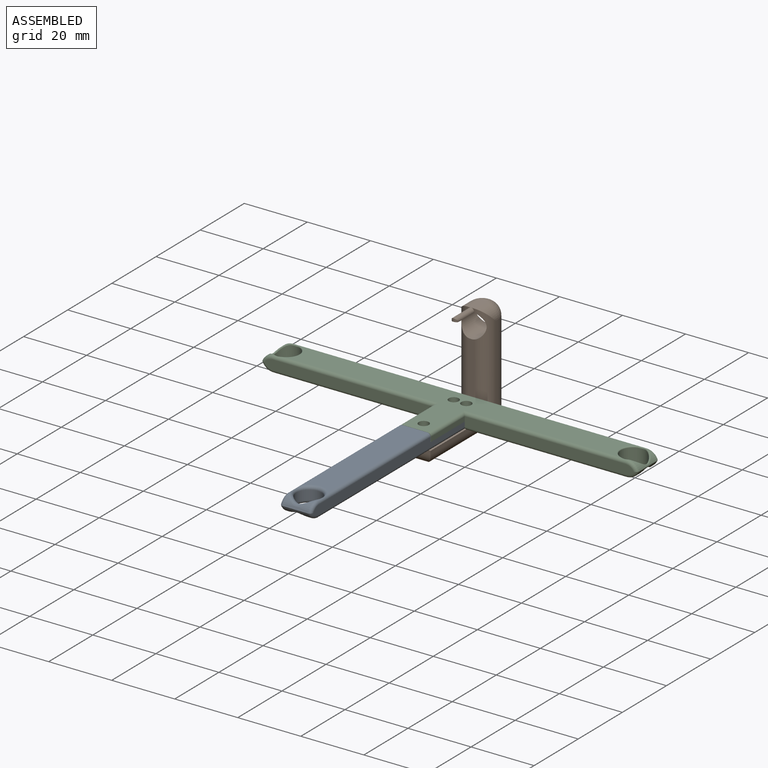
[diagram: assembled view]
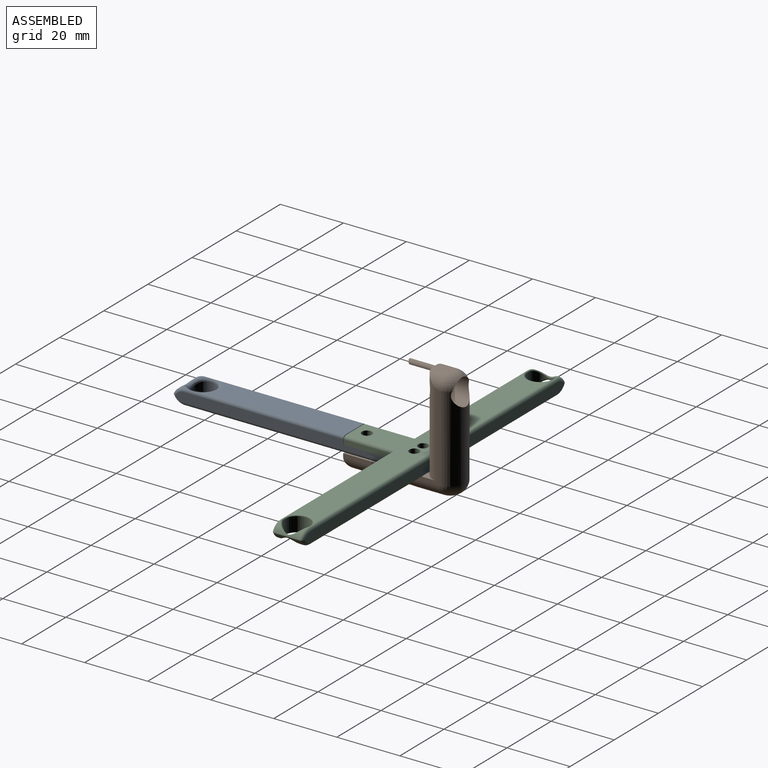
[diagram: assembled view, second angle]
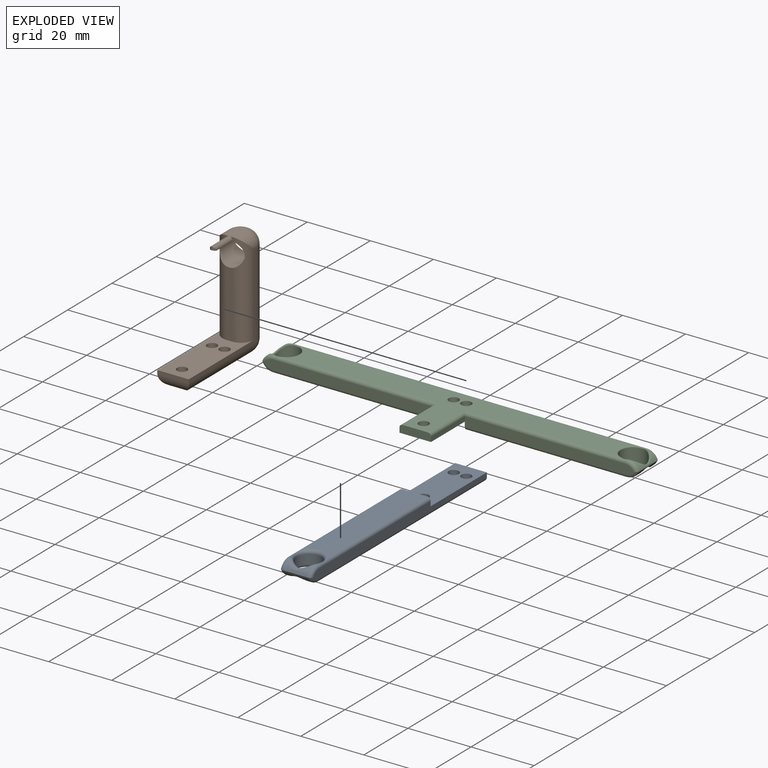
[diagram: exploded view]
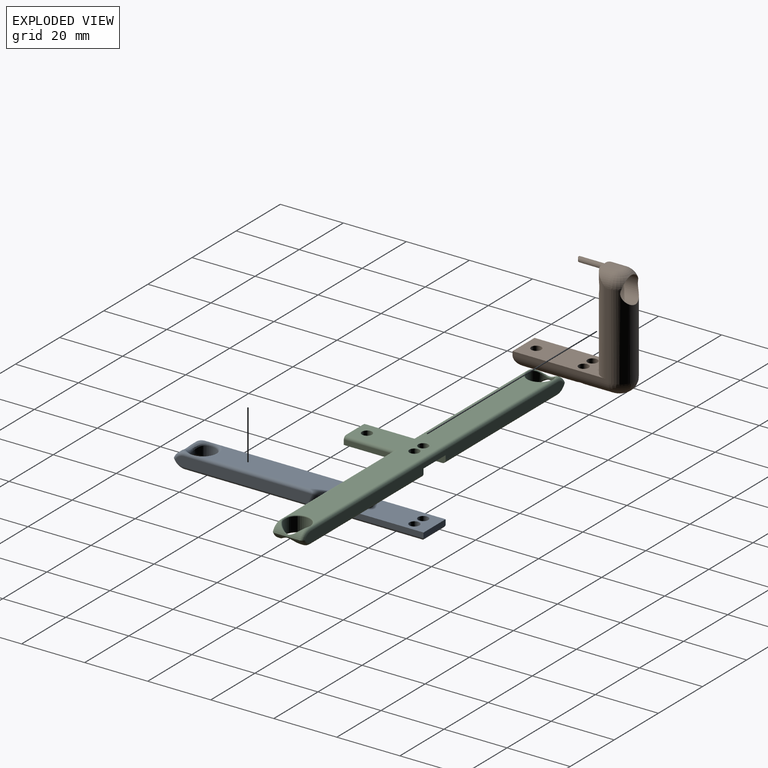
[diagram: exploded view, second angle]
ASSEMBLY  parts=3 mates=2
PART A: 26 faces, bbox 12.4x80x6.8 mm
  f0: plane 78.6x3mm, normal (-1,0,0), area 195.4mm2, adj f1,f5,f6,f13,f16,f20,f21
  f1: plane 10x1.5mm, normal (0,-1,0), area 15mm2, adj f0,f2,f6,f15
  f2: plane 78.6x3mm, normal (1,0,0), area 195.4mm2, adj f1,f5,f6,f18,f22,f23,f25
  f3: plane 45.03x8mm, normal (0,0,1), area 349.1mm2, adj f5,f19,f20,f23
  f4: plane 69.47x8mm, normal (0,0,-1), area 520.4mm2, adj f7,f8,f9,f13,f14,f15,f18
  f5: plane 10x2.5mm, normal (0,-1,0), area 24.6mm2, adj f0,f2,f3,f6,f20,f23
  f6: plane 25.44x10mm, normal (0,0,1), area 230.3mm2, adj f0,f1,f2,f5,f7,f8,f9
  f7: cylinder r=1.6mm len=3.2mm, axis (0,0,1), area 25.1mm2, adj f4,f6
  f8: cylinder r=1.6mm len=3.2mm, axis (0,0,1), area 25.1mm2, adj f4,f6
  f9: cylinder r=1.6mm len=3.2mm, axis (0,0,1), area 25.1mm2, adj f4,f6
  f10: cylinder r=4mm len=8mm, axis (0,0,1), area 75.4mm2, adj f14,f17,f19,f24
  f11: cylinder r=4mm len=8mm, axis (1,0,0), area 15.8mm2, adj f12,f21,f24,f25
  f12: cylinder r=4mm len=8mm, axis (-1,0,0), area 15.8mm2, adj f11,f16,f17,f22
  f13: cylinder r=1mm len=76mm, axis (0,-1,0), area 116.8mm2, adj f0,f4,f14,f15,f16,f17
  f14: torus R=5mm, axis (0,0,1), area 24.6mm2, adj f4,f10,f13,f17,f18
  f15: cylinder r=1mm len=10mm, axis (1,0,0), area 14.1mm2, adj f1,f4,f13,f18
  f16: torus R=3mm, axis (-1,0,0), area 6.4mm2, adj f0,f12,f13,f17,f21
  f17: bspline ~9.2x4.42mm, area 20.5mm2, adj f10,f12,f13,f14,f16,f18,f22
  f18: cylinder r=1mm len=76mm, axis (0,1,0), area 116.8mm2, adj f2,f4,f14,f15,f17,f22
  f19: torus R=5mm, axis (0,0,1), area 24.6mm2, adj f3,f10,f20,f23,f24
  f20: cylinder r=1mm len=50.56mm, axis (0,1,0), area 77.4mm2, adj f0,f3,f5,f19,f21,f24
  f21: torus R=3mm, axis (-1,0,0), area 6.4mm2, adj f0,f11,f16,f20,f24
  f22: torus R=3mm, axis (1,0,0), area 6.4mm2, adj f2,f12,f17,f18,f25
  f23: cylinder r=1mm len=50.56mm, axis (0,-1,0), area 77.4mm2, adj f2,f3,f5,f19,f24,f25
  f24: bspline ~9.2x4.42mm, area 20.5mm2, adj f10,f11,f19,f20,f21,f23,f25
  f25: torus R=3mm, axis (1,0,0), area 6.4mm2, adj f2,f11,f22,f23,f24
PART B: 25 faces, bbox 35.5x10x35 mm
  f0: plane 30.5x27mm, normal (0,-1,0), area 56.5mm2, adj f1,f4,f11,f12,f13,f17
  f1: plane 10x1mm, normal (1,0,0), area 10mm2, adj f0,f2,f4,f19
  f2: plane 30.5x27mm, normal (0,1,0), area 56.5mm2, adj f1,f4,f11,f15,f16,f20
  f3: plane 26.19x2mm, normal (0,0,1), area 49.4mm2, adj f5,f6,f7,f17,f18,f20
  f4: plane 29.5x10mm, normal (0,0,-1), area 237.7mm2, adj f0,f1,f2,f5,f6,f7,f8,f12
  f5: cylinder r=1.6mm len=5mm, axis (0,0,1), area 47.2mm2, adj f3,f4,f20
  f6: cylinder r=1.6mm len=5mm, axis (0,0,1), area 47.2mm2, adj f3,f4,f17
  f7: cylinder r=1.6mm len=5mm, axis (0,0,1), area 49.6mm2, adj f3,f4,f17,f19,f20
  f8: plane 21.13x2mm, normal (1,0,0), area 42.1mm2, adj f4,f10,f12,f15
  f9: plane 6x2mm, normal (0,0,-1), area 11.5mm2, adj f12,f13,f14,f15,f16
  f10: cylinder r=4mm len=18mm, axis (1,0,0), area 222.1mm2, adj f8,f11,f12,f14,f15,f21,f22,f23
  f11: cylinder r=5mm len=27mm, axis (0,0,1), area 387.1mm2, adj f0,f2,f10,f14,f18
  f12: cylinder r=4mm len=30mm, axis (0,0,-1), area 160.8mm2, adj f0,f4,f8,f9,f10,f13,f21,f24
  f13: cylinder r=4mm len=5mm, axis (-1,0,0), area 22.3mm2, adj f0,f9,f12,f14
  f14: torus R=1mm, axis (0,0,-1), area 49.5mm2, adj f9,f10,f11,f13,f16
  f15: cylinder r=4mm len=30mm, axis (0,0,1), area 160.8mm2, adj f2,f4,f8,f9,f10,f16,f22,f24
  f16: cylinder r=4mm len=5mm, axis (1,0,0), area 22.3mm2, adj f2,f9,f14,f15
  f17: cylinder r=4mm len=30.5mm, axis (-1,0,0), area 174.3mm2, adj f0,f3,f6,f7,f18,f19
  f18: torus R=1mm, axis (0,0,1), area 70mm2, adj f3,f11,f17,f20
  f19: cylinder r=4mm len=10mm, axis (0,-1,0), area 41mm2, adj f1,f7,f17,f20
  f20: cylinder r=4mm len=30.5mm, axis (1,0,0), area 174.3mm2, adj f2,f3,f5,f7,f18,f19
  f21: plane 7x0.13mm, normal (0,-1,0), area 0.9mm2, adj f10,f12,f23,f24
  f22: plane 7x0.13mm, normal (0,1,0), area 0.9mm2, adj f10,f15,f23,f24
  f23: cylinder r=1mm len=2mm, axis (0,0,-1), area 2.2mm2, adj f10,f21,f22,f24
  f24: cylinder r=1mm len=8.13mm, axis (1,0,0), area 24.2mm2, adj f12,f15,f21,f22,f23
PART C: 62 faces, bbox 120x25.3x5.7 mm
  f0: plane 48.42x8mm, normal (0,0,1), area 371.6mm2, adj f10,f26,f33,f56
  f1: plane 106.84x24.3mm, normal (0,0,-1), area 929.5mm2, adj f5,f6,f11,f14,f21,f22,f31,f34
  f2: plane 48.42x8mm, normal (0,0,1), area 371.6mm2, adj f9,f24,f28,f38
  f3: plane 53.6x3mm, normal (0,1,0), area 158.5mm2, adj f9,f12,f22,f23,f24,f25
  f4: plane 53.6x3mm, normal (0,1,0), area 158.5mm2, adj f10,f13,f33,f35,f36,f37
  f5: cylinder r=1.6mm len=3.2mm, axis (0,0,-1), area 25.1mm2, adj f1,f8
  f6: cylinder r=1.6mm len=3.2mm, axis (0,0,-1), area 25.1mm2, adj f1,f8
  f7: plane 117.2x3mm, normal (0,-1,0), area 332.1mm2, adj f8,f9,f10,f26,f27,f28,f29,f30
  f8: plane 25.3x10mm, normal (0,0,1), area 228.9mm2, adj f5,f6,f7,f9,f10,f11,f12,f13
  f9: plane 10x2.5mm, normal (1,0,0), area 24.6mm2, adj f2,f3,f7,f8,f24,f28
  f10: plane 10x2.5mm, normal (-1,0,0), area 24.6mm2, adj f0,f4,f7,f8,f26,f33
  f11: plane 10x2.5mm, normal (0,1,0), area 24.6mm2, adj f1,f8,f12,f13,f21,f34
  f12: plane 15.3x1.5mm, normal (-1,0,0), area 22.9mm2, adj f3,f8,f11,f21
  f13: plane 15.3x1.5mm, normal (1,0,0), area 22.9mm2, adj f4,f8,f11,f34
  f14: cylinder r=1.6mm len=3.2mm, axis (0,0,-1), area 25.1mm2, adj f1,f8
  f15: cylinder r=4mm len=8mm, axis (0,0,1), area 90.4mm2, adj f50,f51,f52,f53,f54,f55,f56,f57
  f16: cylinder r=4mm len=8mm, axis (0,0,1), area 90.4mm2, adj f38,f39,f40,f41,f42,f43,f44,f45
  f17: cylinder r=4mm len=8mm, axis (0,1,0), area 12.6mm2, adj f18,f25,f30,f43
  f18: cylinder r=4mm len=8mm, axis (0,-1,0), area 12.6mm2, adj f17,f23,f32,f49
  f19: cylinder r=4mm len=8mm, axis (0,-1,0), area 12.6mm2, adj f20,f27,f35,f61
  f20: cylinder r=4mm len=8mm, axis (0,1,0), area 12.6mm2, adj f19,f29,f37,f55
  f21: cylinder r=1mm len=16.3mm, axis (0,-1,0), area 24.6mm2, adj f1,f11,f12,f22
  f22: cylinder r=1mm len=52mm, axis (-1,0,0), area 79.8mm2, adj f1,f3,f21,f23,f46
  f23: torus R=3mm, axis (0,1,0), area 6.3mm2, adj f3,f18,f22,f25,f48
  f24: cylinder r=1mm len=51mm, axis (1,0,0), area 79.3mm2, adj f2,f3,f9,f25,f39
  f25: torus R=3mm, axis (0,1,0), area 6.3mm2, adj f3,f17,f23,f24,f41
  f26: cylinder r=1mm len=51mm, axis (-1,0,0), area 79.3mm2, adj f0,f7,f10,f27,f57
  f27: torus R=3mm, axis (0,1,0), area 6.3mm2, adj f7,f19,f26,f29,f59
  f28: cylinder r=1mm len=51mm, axis (-1,0,0), area 79.3mm2, adj f2,f7,f9,f30,f40
  f29: torus R=3mm, axis (0,1,0), area 6.3mm2, adj f7,f20,f27,f31,f54
  f30: torus R=3mm, axis (0,1,0), area 6.3mm2, adj f7,f17,f28,f32,f42
  f31: cylinder r=1mm len=112mm, axis (1,0,0), area 174.2mm2, adj f1,f7,f29,f32,f45,f52
  f32: torus R=3mm, axis (0,1,0), area 6.3mm2, adj f7,f18,f30,f31,f47
  f33: cylinder r=1mm len=51mm, axis (1,0,0), area 79.3mm2, adj f0,f4,f10,f35,f58
  f34: cylinder r=1mm len=16.3mm, axis (0,1,0), area 24.6mm2, adj f1,f11,f13,f36
  f35: torus R=3mm, axis (0,1,0), area 6.3mm2, adj f4,f19,f33,f37,f60
  f36: cylinder r=1mm len=52mm, axis (-1,0,0), area 79.8mm2, adj f1,f4,f34,f37,f51
  f37: torus R=3mm, axis (0,1,0), area 6.3mm2, adj f4,f20,f35,f36,f53
  f38: torus R=4.3mm, axis (0,0,1), area 4.6mm2, adj f2,f16,f39,f40
  f39: bspline ~3.17x0.91mm, area 1.4mm2, adj f16,f24,f38,f41
  f40: bspline ~3.65x0.91mm, area 1.4mm2, adj f16,f28,f38,f42
  f41: bspline ~1.48x0.73mm, area 0.3mm2, adj f16,f25,f39,f43
  f42: bspline ~1.86x0.91mm, area 0.3mm2, adj f16,f30,f40,f43
  f43: bspline ~8.39x3.69mm, area 7mm2, adj f16,f17,f41,f42
  f44: torus R=4.3mm, axis (0,0,1), area 4.6mm2, adj f1,f16,f45,f46
  f45: bspline ~3.33x0.91mm, area 1.4mm2, adj f16,f31,f44,f47
  f46: bspline ~3.09x0.91mm, area 1.4mm2, adj f16,f22,f44,f48
  f47: bspline ~1.5x0.85mm, area 0.3mm2, adj f16,f32,f45,f49
  f48: bspline ~1.13x0.67mm, area 0.3mm2, adj f16,f23,f46,f49
  f49: bspline ~8.39x3.69mm, area 7mm2, adj f16,f18,f47,f48
  f50: torus R=4.3mm, axis (0,0,1), area 4.6mm2, adj f1,f15,f51,f52
  f51: bspline ~3.33x0.91mm, area 1.4mm2, adj f15,f36,f50,f53
  f52: bspline ~3.33x0.91mm, area 1.4mm2, adj f15,f31,f50,f54
  f53: bspline ~1.5x0.85mm, area 0.3mm2, adj f15,f37,f51,f55
  f54: bspline ~1.13x0.67mm, area 0.3mm2, adj f15,f29,f52,f55
  f55: bspline ~8.39x3.69mm, area 7mm2, adj f15,f20,f53,f54
  f56: torus R=4.3mm, axis (0,0,1), area 4.6mm2, adj f0,f15,f57,f58
  f57: bspline ~3.65x0.91mm, area 1.4mm2, adj f15,f26,f56,f59
  f58: bspline ~3.65x0.91mm, area 1.4mm2, adj f15,f33,f56,f60
  f59: bspline ~1.48x0.73mm, area 0.3mm2, adj f15,f27,f57,f61
  f60: bspline ~1.32x0.81mm, area 0.3mm2, adj f15,f35,f58,f61
  f61: bspline ~8.39x3.69mm, area 7mm2, adj f15,f19,f59,f60
PLACE A rot(axis=(0,0,1),180deg) t=(7.44,-93.23,5.02)mm
PLACE B rot(axis=(-0.71,0.71,0),180deg) t=(6.22,-77.23,5.02)mm
PLACE C rot(axis=(-1,0,0),180deg) t=(4.78,-72.79,9.98)mm
MATE planar B.f5 <-> A.f7  axis (0,0,1) through (5.44,-72.79,5.02)mm
MATE fastened A.f1 <-> C.f7  axis (0,1,0) through (7.44,-67.79,7.52)mm
